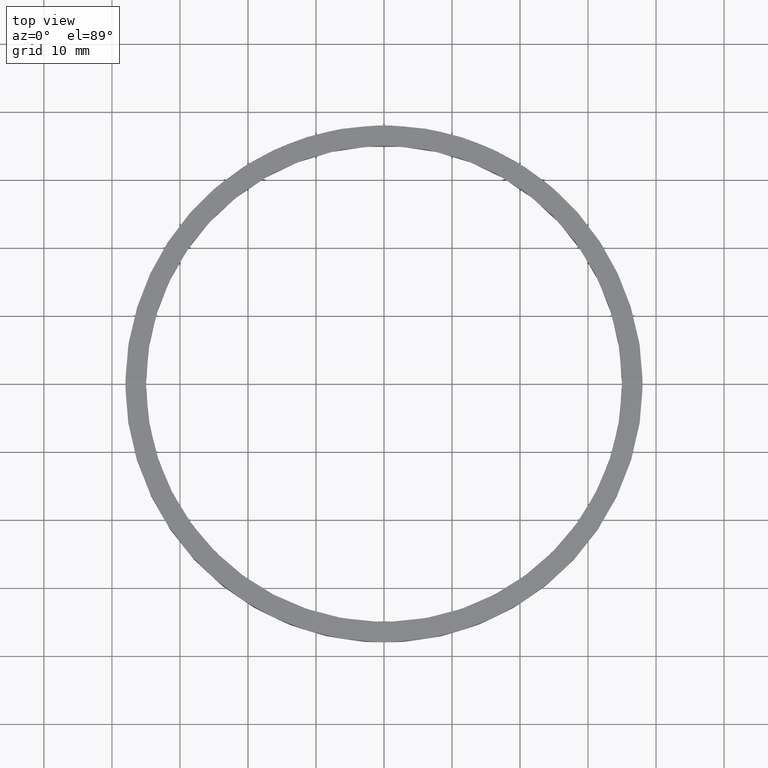
[diagram: clean part render]
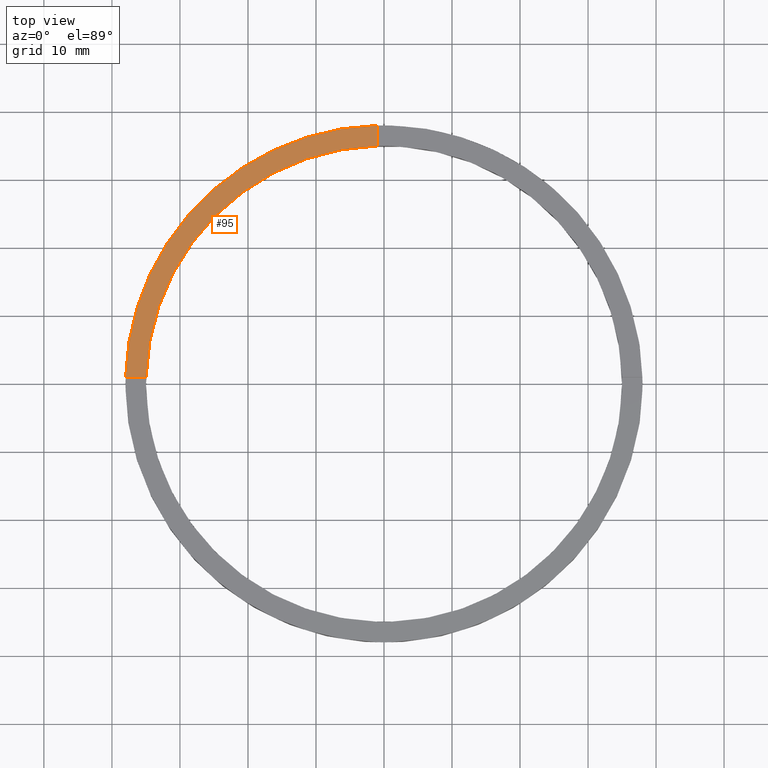
[diagram: same view with one face highlighted and labeled with its STEP entity id]
A machine part, top view. The second image highlights one B-rep face of the part: STEP entity #95.
In plain terms, the highlighted planar face has unit normal (0, 0, 1).
Its self-contained STEP definition (entity closure, byte-faithful):
#29 = DIRECTION ( 'NONE',  ( -0.000000000000000000, -1.000000000000000000, -0.000000000000000000 ) ) ;
#32 = AXIS2_PLACEMENT_3D ( 'NONE', #298, #184, #261 ) ;
#40 = DIRECTION ( 'NONE',  ( -1.000000000000000000, -1.951563910473907735E-16, 0.000000000000000000 ) ) ;
#63 = DIRECTION ( 'NONE',  ( 1.000000000000000000, 0.000000000000000000, -0.000000000000000000 ) ) ;
#66 = VECTOR ( 'NONE', #29, 1000.000000000000000 ) ;
#85 = VERTEX_POINT ( 'NONE', #504 ) ;
#95 = ADVANCED_FACE ( 'NONE', ( #718 ), #545, .T. ) ;
#106 = ORIENTED_EDGE ( 'NONE', *, *, #422, .T. ) ;
#122 = VERTEX_POINT ( 'NONE', #154 ) ;
#154 = CARTESIAN_POINT ( 'NONE',  ( -1.000000000000025313, 34.98571136907180801, 3.500000000000000000 ) ) ;
#161 = AXIS2_PLACEMENT_3D ( 'NONE', #743, #667, #63 ) ;
#171 = VERTEX_POINT ( 'NONE', #508 ) ;
#177 = CARTESIAN_POINT ( 'NONE',  ( -1.000000000000025313, 27.99999999999999645, 3.500000000000000000 ) ) ;
#184 = DIRECTION ( 'NONE',  ( 0.000000000000000000, 0.000000000000000000, 1.000000000000000000 ) ) ;
#226 = ORIENTED_EDGE ( 'NONE', *, *, #520, .F. ) ;
#257 = CARTESIAN_POINT ( 'NONE',  ( -28.00000000000018474, 0.9999999999999742428, 3.500000000000000000 ) ) ;
#261 = DIRECTION ( 'NONE',  ( 1.000000000000000000, 0.000000000000000000, 0.000000000000000000 ) ) ;
#298 = CARTESIAN_POINT ( 'NONE',  ( 0.000000000000000000, 0.000000000000000000, 3.500000000000000000 ) ) ;
#337 = VECTOR ( 'NONE', #40, 1000.000000000000000 ) ;
#341 = CIRCLE ( 'NONE', #32, 35.00000000000000711 ) ;
#422 = EDGE_CURVE ( 'NONE', #665, #171, #568, .T. ) ;
#449 = ORIENTED_EDGE ( 'NONE', *, *, #511, .F. ) ;
#482 = EDGE_LOOP ( 'NONE', ( #449, #106, #732, #226 ) ) ;
#501 = EDGE_CURVE ( 'NONE', #85, #171, #586, .T. ) ;
#504 = CARTESIAN_POINT ( 'NONE',  ( -34.98571136907180801, 0.9999999999999729106, 3.500000000000000000 ) ) ;
#508 = CARTESIAN_POINT ( 'NONE',  ( -37.98683982644515567, 0.9999999999999722444, 3.500000000000000000 ) ) ;
#511 = EDGE_CURVE ( 'NONE', #665, #122, #578, .T. ) ;
#520 = EDGE_CURVE ( 'NONE', #122, #85, #341, .T. ) ;
#545 = PLANE ( 'NONE',  #161 ) ;
#549 = DIRECTION ( 'NONE',  ( 1.000000000000000000, 0.000000000000000000, 0.000000000000000000 ) ) ;
#568 = CIRCLE ( 'NONE', #676, 38.00000000000000000 ) ;
#578 = LINE ( 'NONE', #177, #66 ) ;
#586 = LINE ( 'NONE', #257, #337 ) ;
#632 = DIRECTION ( 'NONE',  ( 0.000000000000000000, 0.000000000000000000, 1.000000000000000000 ) ) ;
#665 = VERTEX_POINT ( 'NONE', #727 ) ;
#667 = DIRECTION ( 'NONE',  ( 0.000000000000000000, 0.000000000000000000, 1.000000000000000000 ) ) ;
#676 = AXIS2_PLACEMENT_3D ( 'NONE', #783, #632, #549 ) ;
#718 = FACE_OUTER_BOUND ( 'NONE', #482, .T. ) ;
#727 = CARTESIAN_POINT ( 'NONE',  ( -1.000000000000025313, 37.98683982644515567, 3.500000000000000000 ) ) ;
#732 = ORIENTED_EDGE ( 'NONE', *, *, #501, .F. ) ;
#743 = CARTESIAN_POINT ( 'NONE',  ( 0.000000000000000000, 0.000000000000000000, 3.500000000000000000 ) ) ;
#783 = CARTESIAN_POINT ( 'NONE',  ( 0.000000000000000000, 0.000000000000000000, 3.500000000000000000 ) ) ;